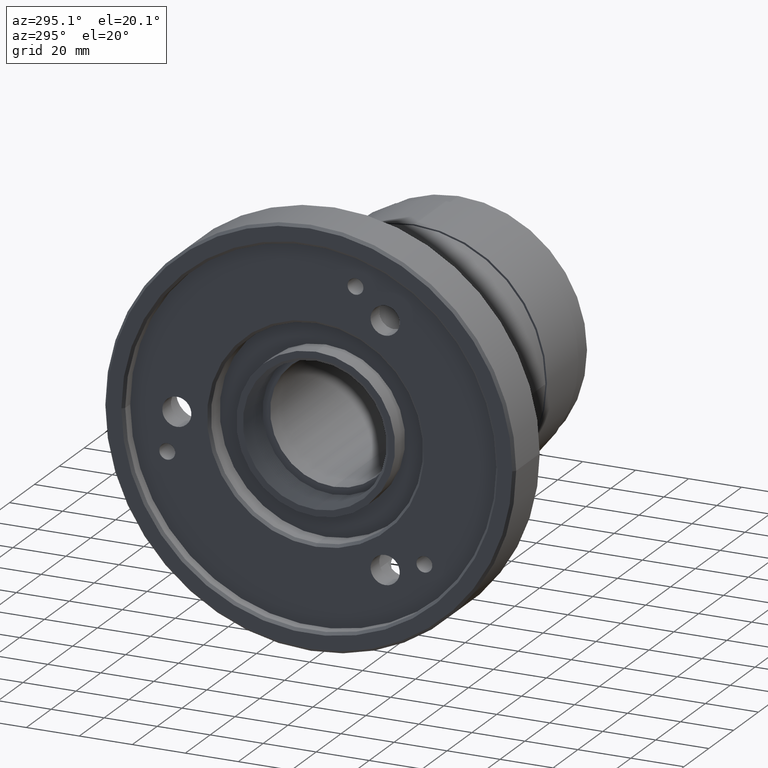
[diagram: clean part render]
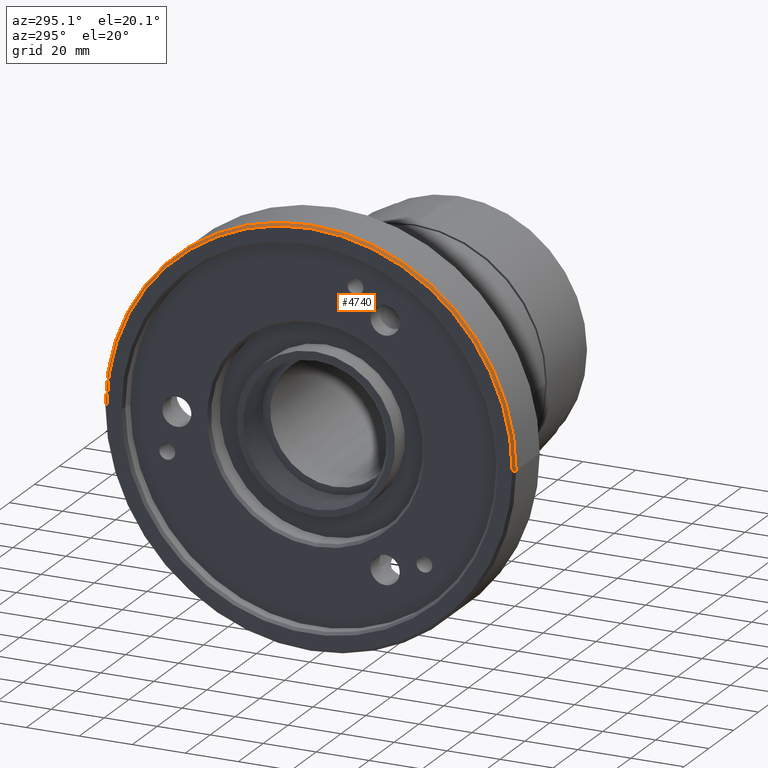
[diagram: same view with one face highlighted and labeled with its STEP entity id]
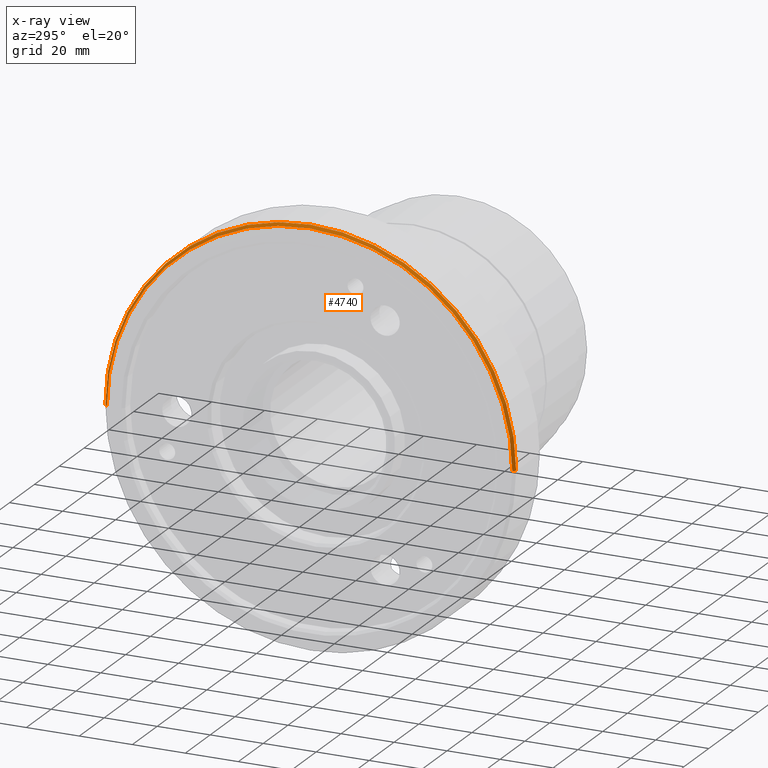
[diagram: x-ray of the same camera — body ghosted, the highlighted face saturated]
A machine part, auxiliary view. The second image highlights one B-rep face of the part: STEP entity #4740.
The next image is the same camera in x-ray: the body ghosted, the highlighted face saturated — about 0% of this face is hidden behind the body in this view.
In plain terms, the highlighted conical surface has half-angle 45 deg.
Its self-contained STEP definition (entity closure, byte-faithful):
#8 = VERTEX_POINT ( 'NONE', #812 ) ;
#34 = VERTEX_POINT ( 'NONE', #3024 ) ;
#667 = VECTOR ( 'NONE', #2404, 1.000000000000000000 ) ;
#728 = EDGE_LOOP ( 'NONE', ( #2056, #2055, #2054, #2053 ) ) ;
#812 = CARTESIAN_POINT ( 'NONE',  ( -6.123233995736773700E-019, 0.07650000000000004000, 0.0000000000000000000 ) ) ;
#1427 = CARTESIAN_POINT ( 'NONE',  ( 0.0009999999999999447300, -8.469516582358558000E-036, 0.0000000000000000000 ) ) ;
#1428 = DIRECTION ( 'NONE',  ( 1.000000000000000000, -8.469516582359024900E-033, 0.0000000000000000000 ) ) ;
#1429 = DIRECTION ( 'NONE',  ( 0.0000000000000000000, 1.000000000000000000, 0.0000000000000000000 ) ) ;
#1437 = CARTESIAN_POINT ( 'NONE',  ( -6.123233995736780400E-019, 5.186083186455716600E-051, 0.0000000000000000000 ) ) ;
#1438 = DIRECTION ( 'NONE',  ( -1.000000000000000000, 8.469516582359026300E-033, -0.0000000000000000000 ) ) ;
#1439 = DIRECTION ( 'NONE',  ( 8.811444190006956100E-033, 1.000000000000000000, 0.0000000000000000000 ) ) ;
#1568 = LINE ( 'NONE', #1570, #4133 ) ;
#1570 = CARTESIAN_POINT ( 'NONE',  ( -6.123233995736773700E-019, 0.07650000000000004000, 0.0000000000000000000 ) ) ;
#1571 = DIRECTION ( 'NONE',  ( 0.7071067811865425800, 0.7071067811865524600, 0.0000000000000000000 ) ) ;
#2053 = ORIENTED_EDGE ( 'NONE', *, *, #4545, .F. ) ;
#2054 = ORIENTED_EDGE ( 'NONE', *, *, #4508, .F. ) ;
#2055 = ORIENTED_EDGE ( 'NONE', *, *, #3671, .T. ) ;
#2056 = ORIENTED_EDGE ( 'NONE', *, *, #4511, .F. ) ;
#2397 = LINE ( 'NONE', #2403, #667 ) ;
#2403 = CARTESIAN_POINT ( 'NONE',  ( -6.123233995736787100E-019, -0.07650000000000004000, 9.368548013477257500E-018 ) ) ;
#2404 = DIRECTION ( 'NONE',  ( 0.7071067811865425800, -0.7071067811865524600, 8.659560562354993300E-017 ) ) ;
#3024 = CARTESIAN_POINT ( 'NONE',  ( -6.123233995736787100E-019, -0.07650000000000004000, 9.429780353434623500E-018 ) ) ;
#3671 = EDGE_CURVE ( 'NONE', #34, #5374, #2397, .T. ) ;
#3973 = AXIS2_PLACEMENT_3D ( 'NONE', #1427, #1428, #1429 ) ;
#4006 = CIRCLE ( 'NONE', #3973, 0.07749999999999999900 ) ;
#4073 = AXIS2_PLACEMENT_3D ( 'NONE', #1437, #1438, #1439 ) ;
#4133 = VECTOR ( 'NONE', #1571, 1.000000000000000000 ) ;
#4145 = CIRCLE ( 'NONE', #4073, 0.07650000000000004000 ) ;
#4508 = EDGE_CURVE ( 'NONE', #5427, #5374, #4006, .T. ) ;
#4511 = EDGE_CURVE ( 'NONE', #34, #8, #4145, .T. ) ;
#4545 = EDGE_CURVE ( 'NONE', #8, #5427, #1568, .T. ) ;
#4740 = ADVANCED_FACE ( 'NONE', ( #5884 ), #5118, .T. ) ;
#5049 = AXIS2_PLACEMENT_3D ( 'NONE', #5887, #5885, #5882 ) ;
#5118 = CONICAL_SURFACE ( 'NONE', #5049, 0.07650000000000004000, 0.7853981633974552700 ) ;
#5374 = VERTEX_POINT ( 'NONE', #6617 ) ;
#5427 = VERTEX_POINT ( 'NONE', #6633 ) ;
#5882 = DIRECTION ( 'NONE',  ( 8.811444190006956100E-033, 1.000000000000000000, 0.0000000000000000000 ) ) ;
#5884 = FACE_OUTER_BOUND ( 'NONE', #728, .T. ) ;
#5885 = DIRECTION ( 'NONE',  ( 1.000000000000000000, -8.469516582359024900E-033, 0.0000000000000000000 ) ) ;
#5887 = CARTESIAN_POINT ( 'NONE',  ( -6.123233995736780400E-019, 5.186083186455717800E-051, 0.0000000000000000000 ) ) ;
#6617 = CARTESIAN_POINT ( 'NONE',  ( 0.0009999999999999447300, -0.07749999999999999900, 0.0000000000000000000 ) ) ;
#6633 = CARTESIAN_POINT ( 'NONE',  ( 0.0009999999999999447300, 0.07749999999999999900, 9.491012693391987900E-018 ) ) ;